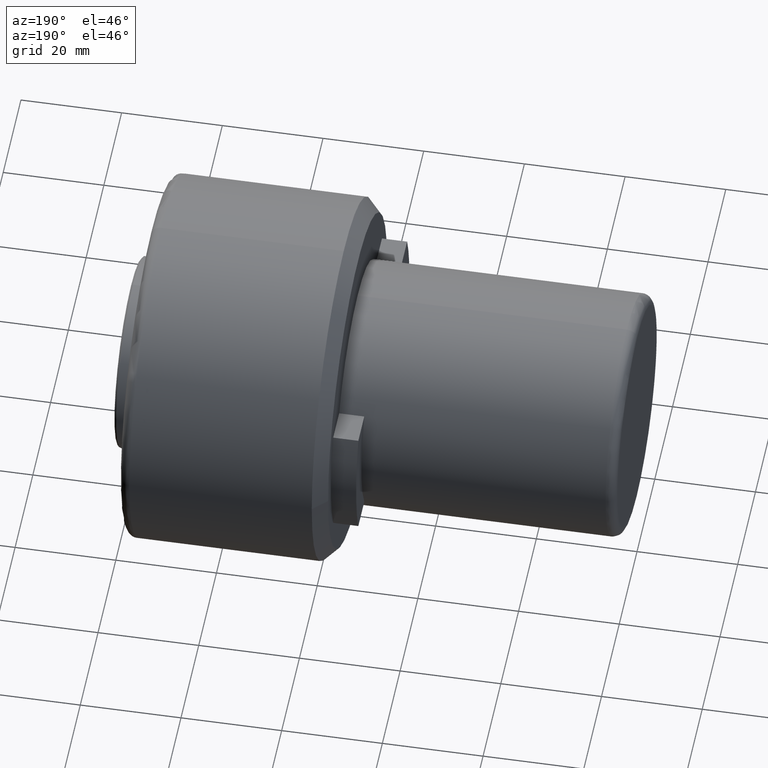
[diagram: clean part render]
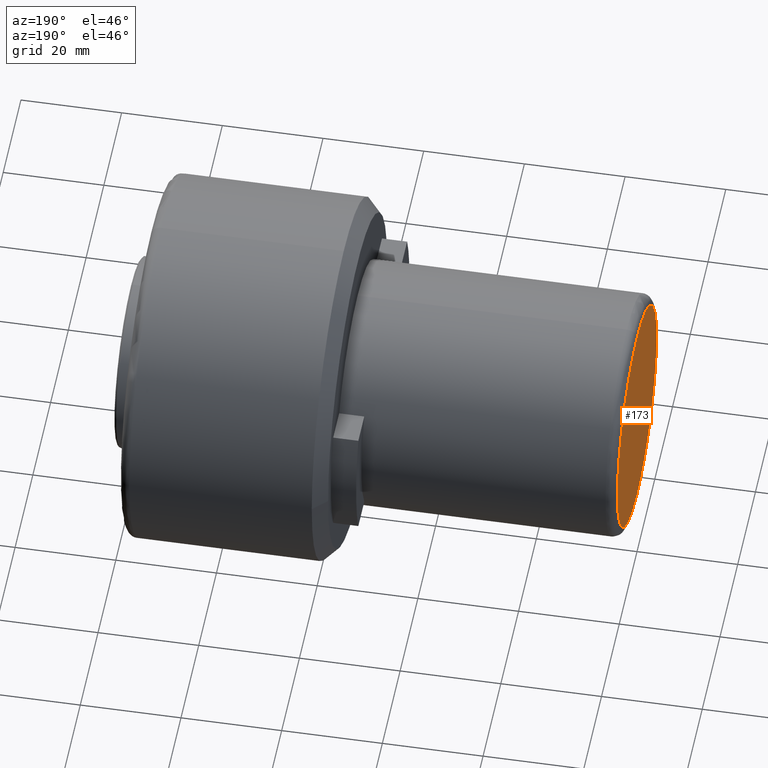
[diagram: same view with one face highlighted and labeled with its STEP entity id]
A machine part, auxiliary view. The second image highlights one B-rep face of the part: STEP entity #173.
In plain terms, the highlighted planar face has unit normal (-1, 0, 0).
Its self-contained STEP definition (entity closure, byte-faithful):
#6 = CIRCLE ( 'NONE', #1261, 22.00000000000000000 ) ;
#44 = CARTESIAN_POINT ( 'NONE',  ( 0.0000000000000000000, 2.816687638038912400E-015, -22.00000000000000700 ) ) ;
#69 = ORIENTED_EDGE ( 'NONE', *, *, #727, .T. ) ;
#75 = CARTESIAN_POINT ( 'NONE',  ( 0.0000000000000000000, 0.0000000000000000000, -7.733975497063264400E-015 ) ) ;
#139 = ORIENTED_EDGE ( 'NONE', *, *, #710, .T. ) ;
#173 = ADVANCED_FACE ( 'NONE', ( #1342 ), #1337, .T. ) ;
#191 = DIRECTION ( 'NONE',  ( 0.0000000000000000000, 0.0000000000000000000, 1.000000000000000000 ) ) ;
#302 = CARTESIAN_POINT ( 'NONE',  ( 0.0000000000000000000, 0.0000000000000000000, -7.733975497063264400E-015 ) ) ;
#343 = CIRCLE ( 'NONE', #773, 22.00000000000000000 ) ;
#401 = CARTESIAN_POINT ( 'NONE',  ( 0.0000000000000000000, 21.60620000000000100, -21.60620000000000100 ) ) ;
#409 = DIRECTION ( 'NONE',  ( 0.0000000000000000000, 0.0000000000000000000, 1.000000000000000000 ) ) ;
#419 = EDGE_LOOP ( 'NONE', ( #139, #69 ) ) ;
#451 = AXIS2_PLACEMENT_3D ( 'NONE', #401, #1244, #702 ) ;
#702 = DIRECTION ( 'NONE',  ( 0.0000000000000000000, 0.0000000000000000000, 1.000000000000000000 ) ) ;
#710 = EDGE_CURVE ( 'NONE', #1139, #1307, #343, .T. ) ;
#727 = EDGE_CURVE ( 'NONE', #1307, #1139, #6, .T. ) ;
#773 = AXIS2_PLACEMENT_3D ( 'NONE', #302, #1028, #409 ) ;
#825 = DIRECTION ( 'NONE',  ( -1.000000000000000000, 0.0000000000000000000, 0.0000000000000000000 ) ) ;
#1028 = DIRECTION ( 'NONE',  ( -1.000000000000000000, 0.0000000000000000000, 0.0000000000000000000 ) ) ;
#1139 = VERTEX_POINT ( 'NONE', #1297 ) ;
#1244 = DIRECTION ( 'NONE',  ( -1.000000000000000000, 0.0000000000000000000, 0.0000000000000000000 ) ) ;
#1261 = AXIS2_PLACEMENT_3D ( 'NONE', #75, #825, #191 ) ;
#1297 = CARTESIAN_POINT ( 'NONE',  ( 0.0000000000000000000, 0.0000000000000000000, 21.99999999999999300 ) ) ;
#1307 = VERTEX_POINT ( 'NONE', #44 ) ;
#1337 = PLANE ( 'NONE',  #451 ) ;
#1342 = FACE_OUTER_BOUND ( 'NONE', #419, .T. ) ;